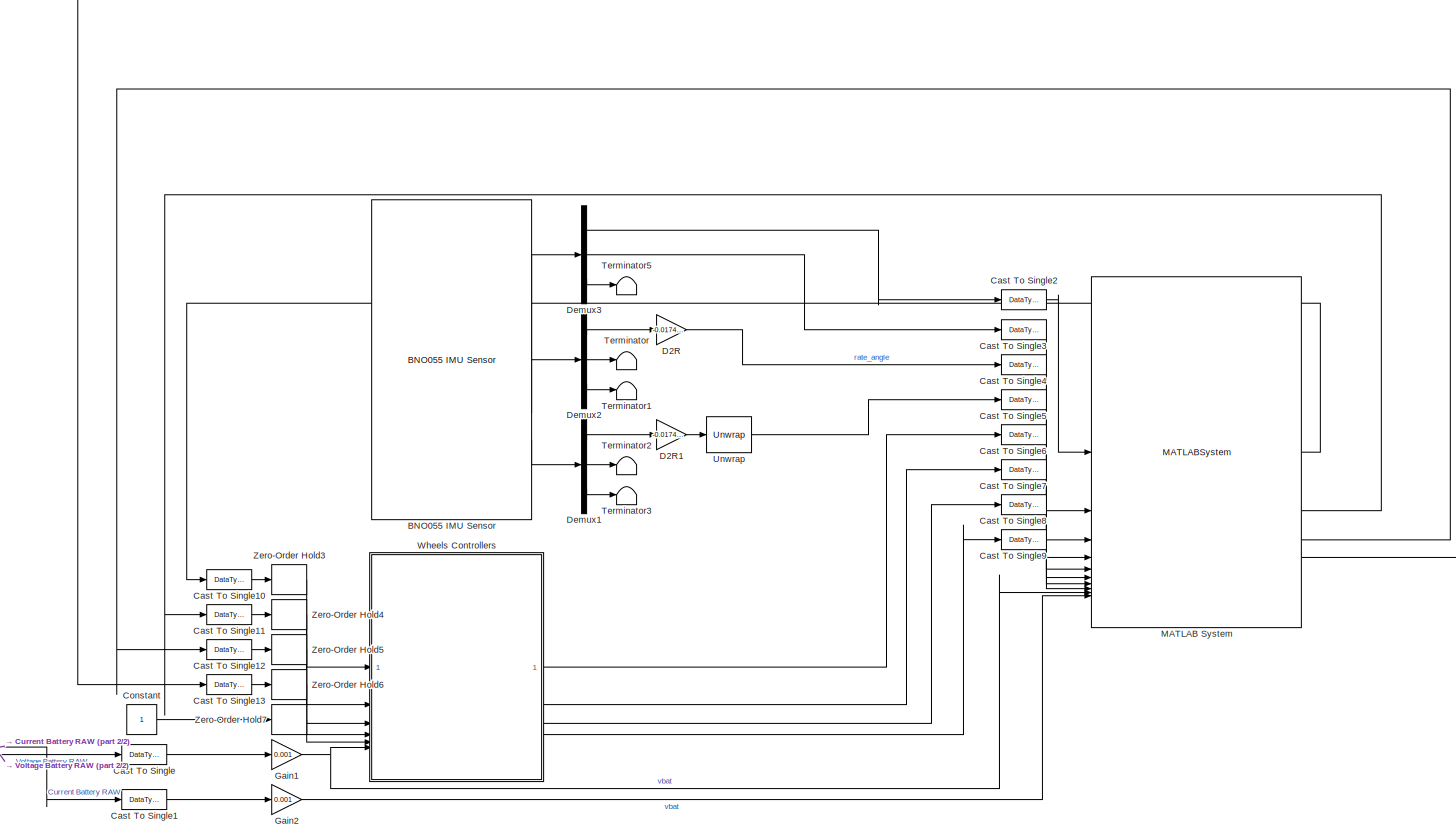
[diagram: root canvas - part 1/2, most of the canvas]
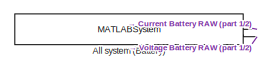
[diagram: root canvas - part 2/2, bottom left region]
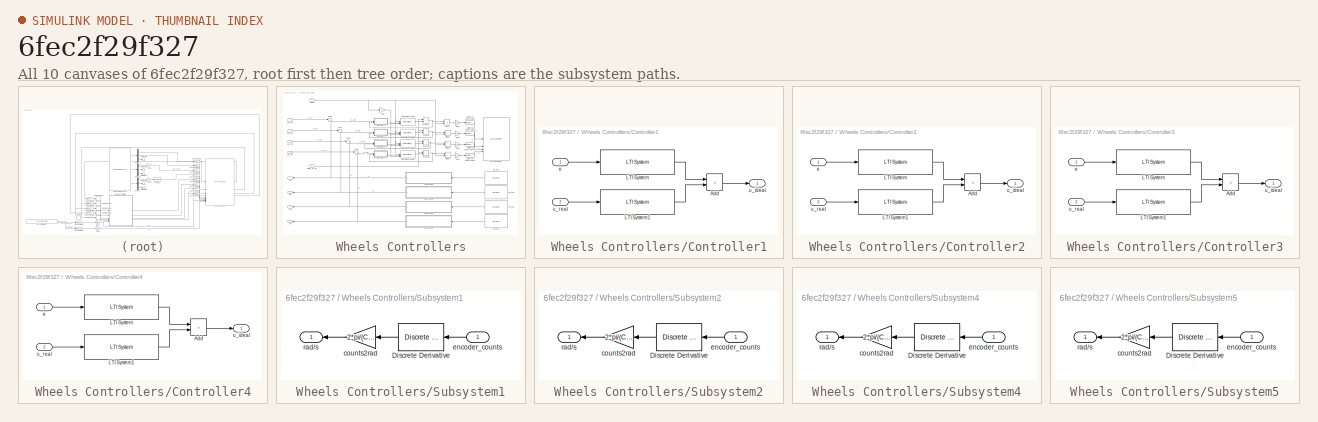
[diagram: thumbnail index - all 10 canvases of the model, root first then tree order]
MODEL slx_6fec2f29f327
KIND model
CONFIG AbsTol = auto
CONFIG EnableMultiTasking = on
CONFIG FixedStep = auto
CONFIG MaxStep = auto
CONFIG MinStep = auto
CONFIG RelTol = 1e-3
CONFIG SampleTimeConstraint = Unconstrained
CONFIG SolverName = ode45
CONFIG StartTime = 0.0
CONFIG StopTime = 10.0
BLOCK [MATLABSystem] All system (Battery)
  MaskDisplay = disp('WattmeterINA219Driver');\nport_label('output',1,'current_mA');\nport_label('output',2,'voltage_mV');
  MaskType = WattmeterINA219Driver
  NameLocation = left
  SampleTime = T
  System = WattmeterINA219Driver
  address = 45
  id = 0
  wire_number = 0
BLOCK [Reference] BNO055 IMU Sensor  REF=arduinosensorlib/BNO055 IMU Sensor
  SourceBlock = arduinosensorlib/BNO055 IMU Sensor
  SourceType = BNO055
BLOCK [DataTypeConversion] Cast To Single
  OutDataTypeStr = single
  RndMeth = Floor
  SaturateOnIntegerOverflow = off
BLOCK [DataTypeConversion] Cast To Single1
  OutDataTypeStr = single
  RndMeth = Floor
  SaturateOnIntegerOverflow = off
BLOCK [DataTypeConversion] Cast To Single10
  OutDataTypeStr = double
  RndMeth = Floor
  SaturateOnIntegerOverflow = off
BLOCK [DataTypeConversion] Cast To Single11
  OutDataTypeStr = double
  RndMeth = Floor
  SaturateOnIntegerOverflow = off
BLOCK [DataTypeConversion] Cast To Single12
  OutDataTypeStr = double
  RndMeth = Floor
  SaturateOnIntegerOverflow = off
BLOCK [DataTypeConversion] Cast To Single13
  OutDataTypeStr = double
  RndMeth = Floor
  SaturateOnIntegerOverflow = off
BLOCK [DataTypeConversion] Cast To Single2
  OutDataTypeStr = single
  RndMeth = Floor
  SaturateOnIntegerOverflow = off
BLOCK [DataTypeConversion] Cast To Single3
  OutDataTypeStr = single
  RndMeth = Floor
  SaturateOnIntegerOverflow = off
BLOCK [DataTypeConversion] Cast To Single4
  OutDataTypeStr = single
  RndMeth = Floor
  SaturateOnIntegerOverflow = off
BLOCK [DataTypeConversion] Cast To Single5
  OutDataTypeStr = single
  RndMeth = Floor
  SaturateOnIntegerOverflow = off
BLOCK [DataTypeConversion] Cast To Single6
  OutDataTypeStr = single
  RndMeth = Floor
  SaturateOnIntegerOverflow = off
BLOCK [DataTypeConversion] Cast To Single7
  OutDataTypeStr = single
  RndMeth = Floor
  SaturateOnIntegerOverflow = off
BLOCK [DataTypeConversion] Cast To Single8
  OutDataTypeStr = single
  RndMeth = Floor
  SaturateOnIntegerOverflow = off
BLOCK [DataTypeConversion] Cast To Single9
  OutDataTypeStr = single
  RndMeth = Floor
  SaturateOnIntegerOverflow = off
BLOCK [Constant] Constant
BLOCK [Gain] D2R
  Gain = -0.0174533
BLOCK [Gain] D2R1
  Gain = -0.0174533
BLOCK [Demux] Demux1
  Outputs = 3
BLOCK [Demux] Demux2
  Outputs = 3
BLOCK [Demux] Demux3
  Outputs = 3
BLOCK [Gain] Gain1
  Gain = 0.001
BLOCK [Gain] Gain2
  Gain = 0.001
BLOCK [MATLABSystem] MATLAB System
  MaskDisplay = disp('Robot_Mecanum_rosserial_Driver');\nport_label('input',1,'a_x');\nport_label('input',2,'a_y');\nport_label('input',3,'w_z');\nport_label('input',4,'theta');\nport_label('input',5,'w1');\nport_label('input',6,'w2');\nport_label('input',7,'w3');\nport_label('input',8,'w4');\nport_label('input',9,'V');\nport_label('input',10,'I');\nport_label('output',1,'ref_w1');\nport_label('output',2,'ref_w2');\nport_labe...<+56ch>
  MaskType = Robot_Mecanum_rosserial_Driver
  SampleTime = T
  System = Robot_Mecanum_rosserial_Driver
BLOCK [Terminator] Terminator
BLOCK [Terminator] Terminator1
BLOCK [Terminator] Terminator2
BLOCK [Terminator] Terminator3
BLOCK [Terminator] Terminator5
BLOCK [Reference] Unwrap  REF=dspsigops/Unwrap
  SourceBlock = dspsigops/Unwrap
  SourceType = Unwrap
  UserDataPersistent = on
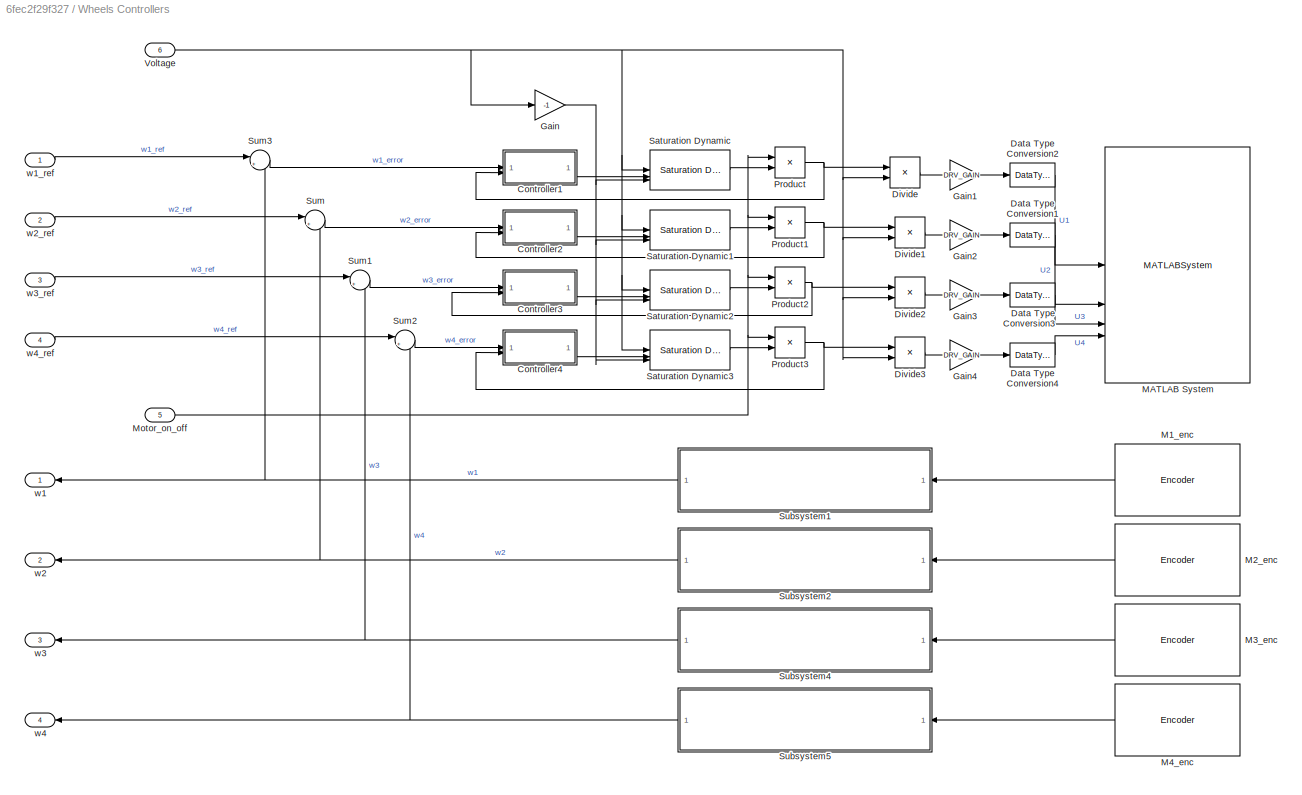
BLOCK [SubSystem] Wheels Controllers
  NameLocation = top
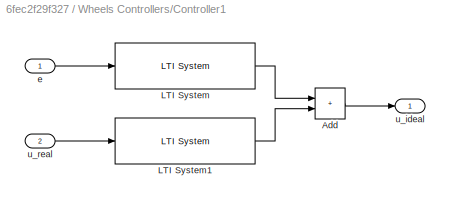
BLOCK [SubSystem] Wheels Controllers/Controller1
BLOCK [Sum] Wheels Controllers/Controller1/Add
  IconShape = rectangular
BLOCK [Reference] Wheels Controllers/Controller1/LTI System  REF=cstblocks/LTI System
  SourceBlock = cstblocks/LTI System
  SourceType = LTI Block
BLOCK [Reference] Wheels Controllers/Controller1/LTI System1  REF=cstblocks/LTI System
  SourceBlock = cstblocks/LTI System
  SourceType = LTI Block
BLOCK [Inport] Wheels Controllers/Controller1/e
BLOCK [Outport] Wheels Controllers/Controller1/u_ideal 
BLOCK [Inport] Wheels Controllers/Controller1/u_real
  Port = 2
BLOCK [SubSystem] Wheels Controllers/Controller2
BLOCK [Sum] Wheels Controllers/Controller2/Add
  IconShape = rectangular
BLOCK [Reference] Wheels Controllers/Controller2/LTI System  REF=cstblocks/LTI System
  SourceBlock = cstblocks/LTI System
  SourceType = LTI Block
BLOCK [Reference] Wheels Controllers/Controller2/LTI System1  REF=cstblocks/LTI System
  SourceBlock = cstblocks/LTI System
  SourceType = LTI Block
BLOCK [Inport] Wheels Controllers/Controller2/e
BLOCK [Outport] Wheels Controllers/Controller2/u_ideal 
BLOCK [Inport] Wheels Controllers/Controller2/u_real
  Port = 2
BLOCK [SubSystem] Wheels Controllers/Controller3
BLOCK [Sum] Wheels Controllers/Controller3/Add
  IconShape = rectangular
BLOCK [Reference] Wheels Controllers/Controller3/LTI System  REF=cstblocks/LTI System
  SourceBlock = cstblocks/LTI System
  SourceType = LTI Block
BLOCK [Reference] Wheels Controllers/Controller3/LTI System1  REF=cstblocks/LTI System
  SourceBlock = cstblocks/LTI System
  SourceType = LTI Block
BLOCK [Inport] Wheels Controllers/Controller3/e
BLOCK [Outport] Wheels Controllers/Controller3/u_ideal 
BLOCK [Inport] Wheels Controllers/Controller3/u_real
  Port = 2
BLOCK [SubSystem] Wheels Controllers/Controller4
BLOCK [Sum] Wheels Controllers/Controller4/Add
  IconShape = rectangular
BLOCK [Reference] Wheels Controllers/Controller4/LTI System  REF=cstblocks/LTI System
  SourceBlock = cstblocks/LTI System
  SourceType = LTI Block
BLOCK [Reference] Wheels Controllers/Controller4/LTI System1  REF=cstblocks/LTI System
  SourceBlock = cstblocks/LTI System
  SourceType = LTI Block
BLOCK [Inport] Wheels Controllers/Controller4/e
BLOCK [Outport] Wheels Controllers/Controller4/u_ideal 
BLOCK [Inport] Wheels Controllers/Controller4/u_real
  Port = 2
BLOCK [DataTypeConversion] Wheels Controllers/Data Type Conversion1
  OutDataTypeStr = int16
  RndMeth = Floor
  SaturateOnIntegerOverflow = off
BLOCK [DataTypeConversion] Wheels Controllers/Data Type Conversion2
  OutDataTypeStr = int16
  RndMeth = Floor
  SaturateOnIntegerOverflow = off
BLOCK [DataTypeConversion] Wheels Controllers/Data Type Conversion3
  OutDataTypeStr = int16
  RndMeth = Floor
  SaturateOnIntegerOverflow = off
BLOCK [DataTypeConversion] Wheels Controllers/Data Type Conversion4
  OutDataTypeStr = int16
  RndMeth = Floor
  SaturateOnIntegerOverflow = off
BLOCK [Product] Wheels Controllers/Divide
  Inputs = */
BLOCK [Product] Wheels Controllers/Divide1
  Inputs = */
BLOCK [Product] Wheels Controllers/Divide2
  Inputs = */
BLOCK [Product] Wheels Controllers/Divide3
  Inputs = */
BLOCK [Gain] Wheels Controllers/Gain
  Gain = -1
BLOCK [Gain] Wheels Controllers/Gain1
  Gain = DRV_GAIN
BLOCK [Gain] Wheels Controllers/Gain2
  Gain = DRV_GAIN
BLOCK [Gain] Wheels Controllers/Gain3
  Gain = DRV_GAIN
BLOCK [Gain] Wheels Controllers/Gain4
  Gain = DRV_GAIN
BLOCK [Reference] Wheels Controllers/M1_enc  REF=arduinosensorlib/Encoder
  NameLocation = right
  SourceBlock = arduinosensorlib/Encoder
  SourceType = Arduino Rotary Encoder
BLOCK [Reference] Wheels Controllers/M2_enc  REF=arduinosensorlib/Encoder
  NameLocation = right
  SourceBlock = arduinosensorlib/Encoder
  SourceType = Arduino Rotary Encoder
BLOCK [Reference] Wheels Controllers/M3_enc  REF=arduinosensorlib/Encoder
  NameLocation = right
  SourceBlock = arduinosensorlib/Encoder
  SourceType = Arduino Rotary Encoder
BLOCK [Reference] Wheels Controllers/M4_enc  REF=arduinosensorlib/Encoder
  NameLocation = right
  SourceBlock = arduinosensorlib/Encoder
  SourceType = Arduino Rotary Encoder
BLOCK [MATLABSystem] Wheels Controllers/MATLAB System
  MaskDisplay = disp('AFMSV2Driver');\nport_label('input',1,'U1');\nport_label('input',2,'U2');\nport_label('input',3,'U3');\nport_label('input',4,'U4');
  MaskType = AFMSV2Driver
  SampleTime = T
  System = AFMSV2Driver
BLOCK [Inport] Wheels Controllers/Motor_on_off
  NameLocation = left
  Port = 5
BLOCK [Product] Wheels Controllers/Product
BLOCK [Product] Wheels Controllers/Product1
BLOCK [Product] Wheels Controllers/Product2
BLOCK [Product] Wheels Controllers/Product3
BLOCK [Reference] Wheels Controllers/Saturation Dynamic  REF=simulink/Discontinuities/Saturation
Dynamic
  SourceBlock = simulink/Discontinuities/Saturation\nDynamic
  SourceType = Saturation Dynamic
BLOCK [Reference] Wheels Controllers/Saturation Dynamic1  REF=simulink/Discontinuities/Saturation
Dynamic
  SourceBlock = simulink/Discontinuities/Saturation\nDynamic
  SourceType = Saturation Dynamic
BLOCK [Reference] Wheels Controllers/Saturation Dynamic2  REF=simulink/Discontinuities/Saturation
Dynamic
  SourceBlock = simulink/Discontinuities/Saturation\nDynamic
  SourceType = Saturation Dynamic
BLOCK [Reference] Wheels Controllers/Saturation Dynamic3  REF=simulink/Discontinuities/Saturation
Dynamic
  SourceBlock = simulink/Discontinuities/Saturation\nDynamic
  SourceType = Saturation Dynamic
BLOCK [SubSystem] Wheels Controllers/Subsystem1
  NameLocation = top
BLOCK [Reference] Wheels Controllers/Subsystem1/Discrete Derivative  REF=simulink/Discrete/Discrete Derivative
  NameLocation = top
  SourceBlock = simulink/Discrete/Discrete Derivative
  SourceType = Discrete Derivative
BLOCK [Gain] Wheels Controllers/Subsystem1/counts2rad
  Gain = 2*pi/(CPR*GR)
BLOCK [Inport] Wheels Controllers/Subsystem1/encoder_counts
  NameLocation = right
BLOCK [Outport] Wheels Controllers/Subsystem1/rad//s
  NameLocation = left
BLOCK [SubSystem] Wheels Controllers/Subsystem2
  NameLocation = top
BLOCK [Reference] Wheels Controllers/Subsystem2/Discrete Derivative  REF=simulink/Discrete/Discrete Derivative
  NameLocation = top
  SourceBlock = simulink/Discrete/Discrete Derivative
  SourceType = Discrete Derivative
BLOCK [Gain] Wheels Controllers/Subsystem2/counts2rad
  Gain = 2*pi/(CPR*GR)
BLOCK [Inport] Wheels Controllers/Subsystem2/encoder_counts
  NameLocation = right
BLOCK [Outport] Wheels Controllers/Subsystem2/rad//s
  NameLocation = left
BLOCK [SubSystem] Wheels Controllers/Subsystem4
  NameLocation = top
BLOCK [Reference] Wheels Controllers/Subsystem4/Discrete Derivative  REF=simulink/Discrete/Discrete Derivative
  NameLocation = top
  SourceBlock = simulink/Discrete/Discrete Derivative
  SourceType = Discrete Derivative
BLOCK [Gain] Wheels Controllers/Subsystem4/counts2rad
  Gain = 2*pi/(CPR*GR)
BLOCK [Inport] Wheels Controllers/Subsystem4/encoder_counts
  NameLocation = right
BLOCK [Outport] Wheels Controllers/Subsystem4/rad//s
  NameLocation = left
BLOCK [SubSystem] Wheels Controllers/Subsystem5
  NameLocation = top
BLOCK [Reference] Wheels Controllers/Subsystem5/Discrete Derivative  REF=simulink/Discrete/Discrete Derivative
  NameLocation = top
  SourceBlock = simulink/Discrete/Discrete Derivative
  SourceType = Discrete Derivative
BLOCK [Gain] Wheels Controllers/Subsystem5/counts2rad
  Gain = 2*pi/(CPR*GR)
BLOCK [Inport] Wheels Controllers/Subsystem5/encoder_counts
  NameLocation = right
BLOCK [Outport] Wheels Controllers/Subsystem5/rad//s
  NameLocation = left
BLOCK [Sum] Wheels Controllers/Sum
  Inputs = |+-
BLOCK [Sum] Wheels Controllers/Sum1
  Inputs = |+-
BLOCK [Sum] Wheels Controllers/Sum2
  Inputs = |+-
BLOCK [Sum] Wheels Controllers/Sum3
  Inputs = |+-
BLOCK [Inport] Wheels Controllers/Voltage
  NameLocation = left
  Port = 6
BLOCK [Outport] Wheels Controllers/w1
  NameLocation = left
BLOCK [Inport] Wheels Controllers/w1_ref
  NameLocation = left
BLOCK [Outport] Wheels Controllers/w2
  NameLocation = left
  Port = 2
BLOCK [Inport] Wheels Controllers/w2_ref
  NameLocation = left
  Port = 2
BLOCK [Outport] Wheels Controllers/w3
  NameLocation = left
  Port = 3
BLOCK [Inport] Wheels Controllers/w3_ref
  NameLocation = left
  Port = 3
BLOCK [Outport] Wheels Controllers/w4
  NameLocation = left
  Port = 4
BLOCK [Inport] Wheels Controllers/w4_ref
  NameLocation = left
  Port = 4
BLOCK [ZeroOrderHold] Zero-Order Hold3
  SampleTime = T
BLOCK [ZeroOrderHold] Zero-Order Hold4
  SampleTime = T
BLOCK [ZeroOrderHold] Zero-Order Hold5
  SampleTime = T
BLOCK [ZeroOrderHold] Zero-Order Hold6
  SampleTime = T
BLOCK [ZeroOrderHold] Zero-Order Hold7
  SampleTime = T
LINE All system (Battery):1 -> Cast To Single1:1
LINE All system (Battery):2 -> Cast To Single:1
LINE BNO055 IMU Sensor:1 -> Demux3:1
LINE BNO055 IMU Sensor:2 -> Demux2:1
LINE BNO055 IMU Sensor:3 -> Demux1:1
LINE Cast To Single10:1 -> Zero-Order Hold3:1
LINE Cast To Single11:1 -> Zero-Order Hold4:1
LINE Cast To Single12:1 -> Zero-Order Hold5:1
LINE Cast To Single13:1 -> Zero-Order Hold6:1
LINE Cast To Single1:1 -> Gain2:1
LINE Cast To Single2:1 -> MATLAB System:1
LINE Cast To Single3:1 -> MATLAB System:2
LINE Cast To Single4:1 -> MATLAB System:3
LINE Cast To Single5:1 -> MATLAB System:4
LINE Cast To Single6:1 -> MATLAB System:5
LINE Cast To Single7:1 -> MATLAB System:6
LINE Cast To Single8:1 -> MATLAB System:7
LINE Cast To Single9:1 -> MATLAB System:8
LINE Cast To Single:1 -> Gain1:1
LINE Constant:1 -> Zero-Order Hold7:1
LINE D2R1:1 -> Unwrap:1
LINE D2R:1 -> Cast To Single4:1
LINE Demux1:1 -> D2R1:1
LINE Demux1:2 -> Terminator2:1
LINE Demux1:3 -> Terminator3:1
LINE Demux2:1 -> D2R:1
LINE Demux2:2 -> Terminator:1
LINE Demux2:3 -> Terminator1:1
LINE Demux3:1 -> Cast To Single2:1
LINE Demux3:2 -> Cast To Single3:1
LINE Demux3:3 -> Terminator5:1
NET Gain1:1 -> MATLAB System:9, Wheels Controllers:6
LINE Gain2:1 -> MATLAB System:10
LINE MATLAB System:1 -> Cast To Single10:1
LINE MATLAB System:2 -> Cast To Single11:1
LINE MATLAB System:3 -> Cast To Single12:1
LINE MATLAB System:4 -> Cast To Single13:1
LINE Unwrap:1 -> Cast To Single5:1
LINE Wheels Controllers/Controller1/Add:1 -> Wheels Controllers/Controller1/u_ideal :1
LINE Wheels Controllers/Controller1/LTI System1:1 -> Wheels Controllers/Controller1/Add:2
LINE Wheels Controllers/Controller1/LTI System:1 -> Wheels Controllers/Controller1/Add:1
LINE Wheels Controllers/Controller1/e:1 -> Wheels Controllers/Controller1/LTI System:1
LINE Wheels Controllers/Controller1/u_real:1 -> Wheels Controllers/Controller1/LTI System1:1
LINE Wheels Controllers/Controller1:1 -> Wheels Controllers/Saturation Dynamic:2
LINE Wheels Controllers/Controller2/Add:1 -> Wheels Controllers/Controller2/u_ideal :1
LINE Wheels Controllers/Controller2/LTI System1:1 -> Wheels Controllers/Controller2/Add:2
LINE Wheels Controllers/Controller2/LTI System:1 -> Wheels Controllers/Controller2/Add:1
LINE Wheels Controllers/Controller2/e:1 -> Wheels Controllers/Controller2/LTI System:1
LINE Wheels Controllers/Controller2/u_real:1 -> Wheels Controllers/Controller2/LTI System1:1
LINE Wheels Controllers/Controller2:1 -> Wheels Controllers/Saturation Dynamic1:2
LINE Wheels Controllers/Controller3/Add:1 -> Wheels Controllers/Controller3/u_ideal :1
LINE Wheels Controllers/Controller3/LTI System1:1 -> Wheels Controllers/Controller3/Add:2
LINE Wheels Controllers/Controller3/LTI System:1 -> Wheels Controllers/Controller3/Add:1
LINE Wheels Controllers/Controller3/e:1 -> Wheels Controllers/Controller3/LTI System:1
LINE Wheels Controllers/Controller3/u_real:1 -> Wheels Controllers/Controller3/LTI System1:1
LINE Wheels Controllers/Controller3:1 -> Wheels Controllers/Saturation Dynamic2:2
LINE Wheels Controllers/Controller4/Add:1 -> Wheels Controllers/Controller4/u_ideal :1
LINE Wheels Controllers/Controller4/LTI System1:1 -> Wheels Controllers/Controller4/Add:2
LINE Wheels Controllers/Controller4/LTI System:1 -> Wheels Controllers/Controller4/Add:1
LINE Wheels Controllers/Controller4/e:1 -> Wheels Controllers/Controller4/LTI System:1
LINE Wheels Controllers/Controller4/u_real:1 -> Wheels Controllers/Controller4/LTI System1:1
LINE Wheels Controllers/Controller4:1 -> Wheels Controllers/Saturation Dynamic3:2
LINE Wheels Controllers/Data Type Conversion1:1 -> Wheels Controllers/MATLAB System:2
LINE Wheels Controllers/Data Type Conversion2:1 -> Wheels Controllers/MATLAB System:1
LINE Wheels Controllers/Data Type Conversion3:1 -> Wheels Controllers/MATLAB System:3
LINE Wheels Controllers/Data Type Conversion4:1 -> Wheels Controllers/MATLAB System:4
LINE Wheels Controllers/Divide1:1 -> Wheels Controllers/Gain2:1
LINE Wheels Controllers/Divide2:1 -> Wheels Controllers/Gain3:1
LINE Wheels Controllers/Divide3:1 -> Wheels Controllers/Gain4:1
LINE Wheels Controllers/Divide:1 -> Wheels Controllers/Gain1:1
LINE Wheels Controllers/Gain1:1 -> Wheels Controllers/Data Type Conversion2:1
LINE Wheels Controllers/Gain2:1 -> Wheels Controllers/Data Type Conversion1:1
LINE Wheels Controllers/Gain3:1 -> Wheels Controllers/Data Type Conversion3:1
LINE Wheels Controllers/Gain4:1 -> Wheels Controllers/Data Type Conversion4:1
NET Wheels Controllers/Gain:1 -> Wheels Controllers/Saturation Dynamic1:3, Wheels Controllers/Saturation Dynamic2:3, Wheels Controllers/Saturation Dynamic3:3, Wheels Controllers/Saturation Dynamic:3
LINE Wheels Controllers/M1_enc:1 -> Wheels Controllers/Subsystem1:1
LINE Wheels Controllers/M2_enc:1 -> Wheels Controllers/Subsystem2:1
LINE Wheels Controllers/M3_enc:1 -> Wheels Controllers/Subsystem4:1
LINE Wheels Controllers/M4_enc:1 -> Wheels Controllers/Subsystem5:1
NET Wheels Controllers/Motor_on_off:1 -> Wheels Controllers/Product1:1, Wheels Controllers/Product2:1, Wheels Controllers/Product3:1, Wheels Controllers/Product:1
NET Wheels Controllers/Product1:1 -> Wheels Controllers/Controller2:2, Wheels Controllers/Divide1:1
NET Wheels Controllers/Product2:1 -> Wheels Controllers/Controller3:2, Wheels Controllers/Divide2:1
NET Wheels Controllers/Product3:1 -> Wheels Controllers/Controller4:2, Wheels Controllers/Divide3:1
NET Wheels Controllers/Product:1 -> Wheels Controllers/Controller1:2, Wheels Controllers/Divide:1
LINE Wheels Controllers/Saturation Dynamic1:1 -> Wheels Controllers/Product1:2
LINE Wheels Controllers/Saturation Dynamic2:1 -> Wheels Controllers/Product2:2
LINE Wheels Controllers/Saturation Dynamic3:1 -> Wheels Controllers/Product3:2
LINE Wheels Controllers/Saturation Dynamic:1 -> Wheels Controllers/Product:2
LINE Wheels Controllers/Subsystem1/Discrete Derivative:1 -> Wheels Controllers/Subsystem1/counts2rad:1
LINE Wheels Controllers/Subsystem1/counts2rad:1 -> Wheels Controllers/Subsystem1/rad//s:1
LINE Wheels Controllers/Subsystem1/encoder_counts:1 -> Wheels Controllers/Subsystem1/Discrete Derivative:1
NET Wheels Controllers/Subsystem1:1 -> Wheels Controllers/Sum3:2, Wheels Controllers/w1:1
LINE Wheels Controllers/Subsystem2/Discrete Derivative:1 -> Wheels Controllers/Subsystem2/counts2rad:1
LINE Wheels Controllers/Subsystem2/counts2rad:1 -> Wheels Controllers/Subsystem2/rad//s:1
LINE Wheels Controllers/Subsystem2/encoder_counts:1 -> Wheels Controllers/Subsystem2/Discrete Derivative:1
NET Wheels Controllers/Subsystem2:1 -> Wheels Controllers/Sum:2, Wheels Controllers/w2:1
LINE Wheels Controllers/Subsystem4/Discrete Derivative:1 -> Wheels Controllers/Subsystem4/counts2rad:1
LINE Wheels Controllers/Subsystem4/counts2rad:1 -> Wheels Controllers/Subsystem4/rad//s:1
LINE Wheels Controllers/Subsystem4/encoder_counts:1 -> Wheels Controllers/Subsystem4/Discrete Derivative:1
NET Wheels Controllers/Subsystem4:1 -> Wheels Controllers/Sum1:2, Wheels Controllers/w3:1
LINE Wheels Controllers/Subsystem5/Discrete Derivative:1 -> Wheels Controllers/Subsystem5/counts2rad:1
LINE Wheels Controllers/Subsystem5/counts2rad:1 -> Wheels Controllers/Subsystem5/rad//s:1
LINE Wheels Controllers/Subsystem5/encoder_counts:1 -> Wheels Controllers/Subsystem5/Discrete Derivative:1
NET Wheels Controllers/Subsystem5:1 -> Wheels Controllers/Sum2:2, Wheels Controllers/w4:1
LINE Wheels Controllers/Sum1:1 -> Wheels Controllers/Controller3:1
LINE Wheels Controllers/Sum2:1 -> Wheels Controllers/Controller4:1
LINE Wheels Controllers/Sum3:1 -> Wheels Controllers/Controller1:1
LINE Wheels Controllers/Sum:1 -> Wheels Controllers/Controller2:1
NET Wheels Controllers/Voltage:1 -> Wheels Controllers/Divide1:2, Wheels Controllers/Divide2:2, Wheels Controllers/Divide3:2, Wheels Controllers/Divide:2, Wheels Controllers/Gain:1, Wheels Controllers/Saturation Dynamic1:1, Wheels Controllers/Saturation Dynamic2:1, Wheels Controllers/Saturation Dynamic3:1, Wheels Controllers/Saturation Dynamic:1
LINE Wheels Controllers/w1_ref:1 -> Wheels Controllers/Sum3:1
LINE Wheels Controllers/w2_ref:1 -> Wheels Controllers/Sum:1
LINE Wheels Controllers/w3_ref:1 -> Wheels Controllers/Sum1:1
LINE Wheels Controllers/w4_ref:1 -> Wheels Controllers/Sum2:1
LINE Wheels Controllers:1 -> Cast To Single6:1
LINE Wheels Controllers:2 -> Cast To Single7:1
LINE Wheels Controllers:3 -> Cast To Single8:1
LINE Wheels Controllers:4 -> Cast To Single9:1
LINE Zero-Order Hold3:1 -> Wheels Controllers:1
LINE Zero-Order Hold4:1 -> Wheels Controllers:2
LINE Zero-Order Hold5:1 -> Wheels Controllers:3
LINE Zero-Order Hold6:1 -> Wheels Controllers:4
LINE Zero-Order Hold7:1 -> Wheels Controllers:5
note: NET lines group one-source signal fan-out (src -> all destinations, sorted); 1:1 wires keep LINE
